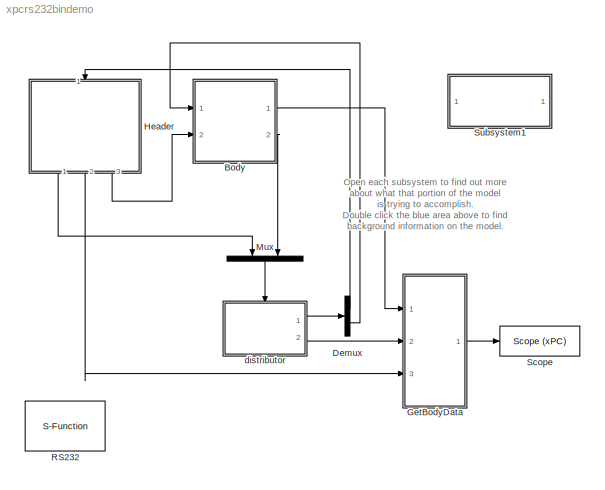
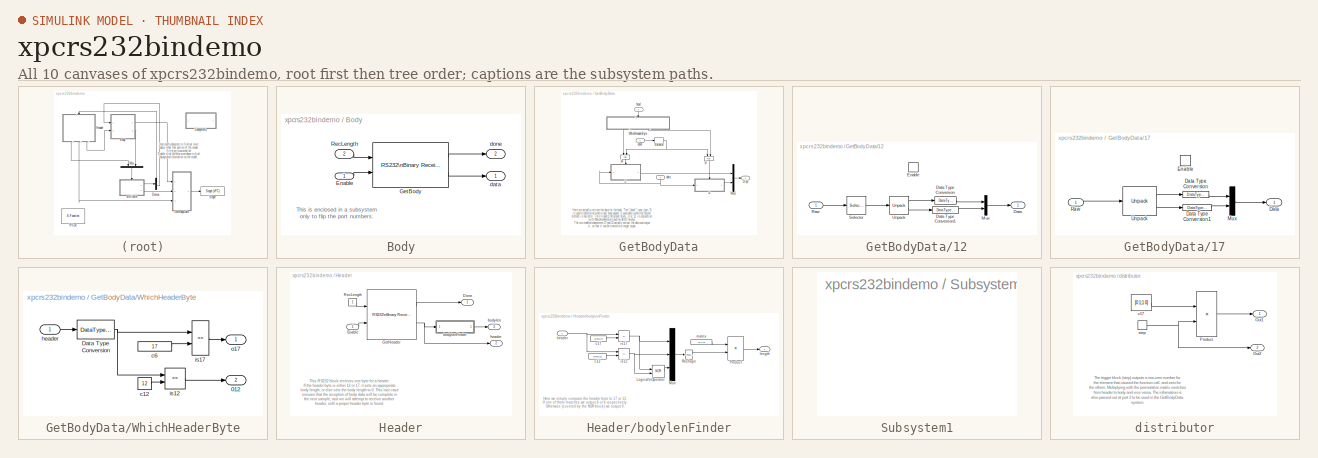
[diagram: thumbnail index - all 10 canvases of the model, root first then tree order]
MODEL xpcrs232bindemo
KIND model
CONFIG AbsTol = auto
CONFIG FixedStep = 0.01
CONFIG MaxStep = auto
CONFIG MinStep = auto
CONFIG RelTol = 1e-3
CONFIG Solver = ode5
CONFIG SolverMode = Auto
CONFIG StartTime = 0.0
CONFIG StopTime = inf
BLOCK [SubSystem] Body
  Ports = [2, 2]
  RTWFcnNameOpts = Auto
  RTWFileNameOpts = Auto
  RTWSystemCode = Auto
  ShowPortLabels = on
  TreatAsAtomicUnit = on
BLOCK [Inport] Body/Enable
  Interpolate = on
  LatchInput = off
  Port = 1
BLOCK [Reference] Body/GetBody  REF=xpclib/RS232/Binary\nMode/RS232\nBinary Receive
  Ports = [2, 2]
  SourceBlock = xpclib/RS232/Binary\nMode/RS232\nBinary Receive
  SourceType = rs232brec
  port = COM1
  samptime = -1
  width = 6
BLOCK [Inport] Body/RecLength
  Interpolate = on
  LatchInput = off
  Port = 2
BLOCK [Outport] Body/data
  InitialOutput = []
  OutputWhenDisabled = held
  Port = 1
BLOCK [Outport] Body/done
  InitialOutput = []
  OutputWhenDisabled = held
  Port = 2
BLOCK [Demux] Demux
  BusSelectionMode = off
  Outputs = 2
  Ports = [1, 2]
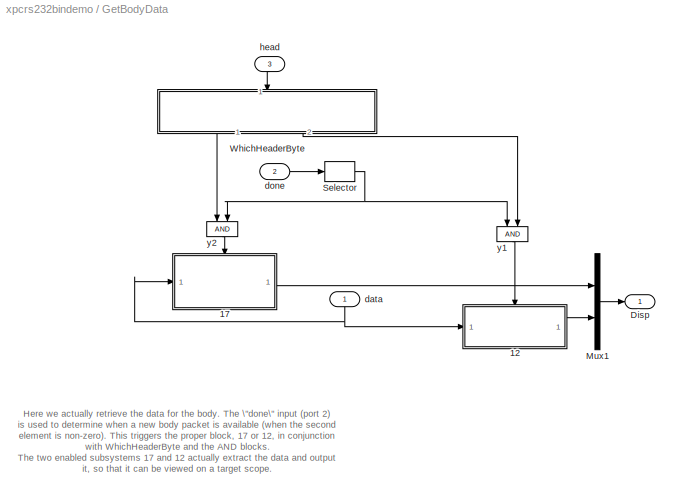
BLOCK [SubSystem] GetBodyData
  Ports = [3, 1]
  RTWFcnNameOpts = Auto
  RTWFileNameOpts = Auto
  RTWSystemCode = Auto
  ShowPortLabels = on
  TreatAsAtomicUnit = off
BLOCK [SubSystem] GetBodyData/12
  Ports = [1, 1, 1]
  RTWFcnNameOpts = Auto
  RTWFileNameOpts = Auto
  RTWSystemCode = Auto
  ShowPortLabels = on
  TreatAsAtomicUnit = on
BLOCK [Outport] GetBodyData/12/Data
  InitialOutput = []
  OutputWhenDisabled = held
  Port = 1
BLOCK [DataTypeConversion] GetBodyData/12/Data Type Conversion
  DataType = double
  SaturateOnIntegerOverflow = on
BLOCK [DataTypeConversion] GetBodyData/12/Data Type Conversion1
  DataType = double
  SaturateOnIntegerOverflow = on
BLOCK [EnablePort] GetBodyData/12/Enable
  Ports = []
  ShowOutputPort = off
  StatesWhenEnabling = held
BLOCK [Mux] GetBodyData/12/Mux
  DisplayOption = bar
  Inputs = 2
  Ports = [2, 1]
BLOCK [Inport] GetBodyData/12/Raw
  Interpolate = on
  LatchInput = off
  Port = 1
BLOCK [Selector] GetBodyData/12/Selector
  ColumnSrc = Internal
  Columns = 1
  ElementSrc = Internal
  Elements = [1:4]
  InputPortWidth = 6
  InputType = Vector
  Ports = [1, 1]
  RowSrc = Internal
  Rows = 1
BLOCK [Reference] GetBodyData/12/Unpack  REF=xpclib/UDP/Unpack
  Ports = [1, 2]
  SourceBlock = xpclib/UDP/Unpack
  SourceType = xpcbyte2any
  byteAlign = 1
  datatypes = {'uint16', 'int16'}
  dimensions = {1,1}
BLOCK [SubSystem] GetBodyData/17
  Ports = [1, 1, 1]
  RTWFcnNameOpts = Auto
  RTWFileNameOpts = Auto
  RTWSystemCode = Auto
  ShowPortLabels = on
  TreatAsAtomicUnit = on
BLOCK [Outport] GetBodyData/17/Data
  InitialOutput = []
  OutputWhenDisabled = held
  Port = 1
BLOCK [DataTypeConversion] GetBodyData/17/Data Type Conversion
  DataType = double
  SaturateOnIntegerOverflow = on
BLOCK [DataTypeConversion] GetBodyData/17/Data Type Conversion1
  DataType = double
  SaturateOnIntegerOverflow = on
BLOCK [EnablePort] GetBodyData/17/Enable
  Ports = []
  ShowOutputPort = off
  StatesWhenEnabling = held
BLOCK [Mux] GetBodyData/17/Mux
  DisplayOption = bar
  Inputs = 2
  Ports = [2, 1]
BLOCK [Inport] GetBodyData/17/Raw
  Interpolate = on
  LatchInput = off
  Port = 1
BLOCK [Reference] GetBodyData/17/Unpack  REF=xpclib/UDP/Unpack
  Ports = [1, 2]
  SourceBlock = xpclib/UDP/Unpack
  SourceType = xpcbyte2any
  byteAlign = 1
  datatypes = {'uint16','int32'}
  dimensions = {1,1}
BLOCK [Outport] GetBodyData/Disp
  InitialOutput = []
  OutputWhenDisabled = held
  Port = 1
BLOCK [Mux] GetBodyData/Mux1
  DisplayOption = bar
  Inputs = 2
  Ports = [2, 1]
BLOCK [Selector] GetBodyData/Selector
  ColumnSrc = Internal
  Columns = 1
  ElementSrc = Internal
  Elements = 2
  InputPortWidth = 2
  InputType = Vector
  Ports = [1, 1]
  RowSrc = Internal
  Rows = 1
BLOCK [SubSystem] GetBodyData/WhichHeaderByte
  Ports = [1, 2]
  RTWFcnNameOpts = Auto
  RTWFileNameOpts = Auto
  RTWSystemCode = Auto
  ShowPortLabels = on
  TreatAsAtomicUnit = off
BLOCK [Outport] GetBodyData/WhichHeaderByte/012
  InitialOutput = []
  OutputWhenDisabled = held
  Port = 2
BLOCK [DataTypeConversion] GetBodyData/WhichHeaderByte/Data Type Conversion
  DataType = double
  SaturateOnIntegerOverflow = on
BLOCK [Constant] GetBodyData/WhichHeaderByte/c12
  Value = 12
  VectorParams1D = on
BLOCK [Constant] GetBodyData/WhichHeaderByte/c6
  Value = 17
  VectorParams1D = on
BLOCK [Inport] GetBodyData/WhichHeaderByte/header
  Interpolate = on
  LatchInput = off
  Port = 1
BLOCK [RelationalOperator] GetBodyData/WhichHeaderByte/is12
  Operator = ==
BLOCK [RelationalOperator] GetBodyData/WhichHeaderByte/is17
  Operator = ==
BLOCK [Outport] GetBodyData/WhichHeaderByte/o17
  InitialOutput = []
  OutputWhenDisabled = held
  Port = 1
BLOCK [Inport] GetBodyData/data
  Interpolate = on
  LatchInput = off
  Port = 1
BLOCK [Inport] GetBodyData/done
  Interpolate = on
  LatchInput = off
  Port = 2
BLOCK [Inport] GetBodyData/head
  Interpolate = on
  LatchInput = off
  Port = 3
BLOCK [Logic] GetBodyData/y1
  Inputs = 2
  Operator = AND
  Ports = [2, 1]
BLOCK [Logic] GetBodyData/y2
  Inputs = 2
  Operator = AND
  Ports = [2, 1]
BLOCK [SubSystem] Header
  Ports = [1, 3]
  RTWFcnNameOpts = Auto
  RTWFileNameOpts = Auto
  RTWSystemCode = Auto
  ShowPortLabels = on
  TreatAsAtomicUnit = on
BLOCK [Outport] Header/Done
  InitialOutput = []
  OutputWhenDisabled = held
  Port = 1
BLOCK [Inport] Header/Enable
  Interpolate = on
  LatchInput = off
  Port = 1
BLOCK [Reference] Header/GetHeader  REF=xpclib/RS232/Binary\nMode/RS232\nBinary Receive
  Ports = [2, 2]
  SourceBlock = xpclib/RS232/Binary\nMode/RS232\nBinary Receive
  SourceType = rs232brec
  port = COM1
  samptime = -1
  width = 1
BLOCK [Constant] Header/RecLength
  Value = 1
  VectorParams1D = on
BLOCK [Outport] Header/bodylen
  InitialOutput = []
  OutputWhenDisabled = held
  Port = 3
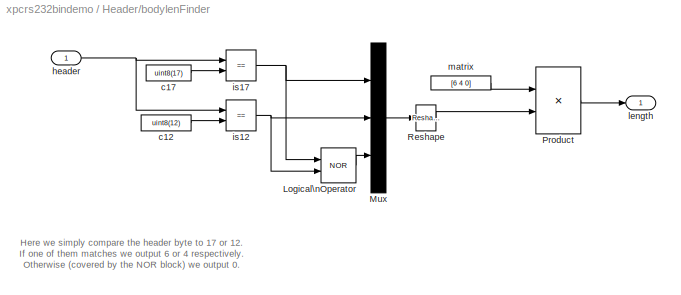
BLOCK [SubSystem] Header/bodylenFinder
  Ports = [1, 1]
  RTWFcnNameOpts = Auto
  RTWFileNameOpts = Auto
  RTWSystemCode = Auto
  ShowPortLabels = on
  TreatAsAtomicUnit = off
BLOCK [Logic] Header/bodylenFinder/Logical\nOperator
  Inputs = 2
  Operator = NOR
  Ports = [2, 1]
BLOCK [Mux] Header/bodylenFinder/Mux
  DisplayOption = bar
  Inputs = 3
  Ports = [3, 1]
BLOCK [Product] Header/bodylenFinder/Product
  Inputs = 2
  Multiplication = Matrix(*)
  Ports = [2, 1]
  SaturateOnIntegerOverflow = on
BLOCK [Reference] Header/bodylenFinder/Reshape  REF=simulink3/Signals\n& Systems/Reshape
  OutputDimensionality = Column vector
  OutputDimensions = [1,1]
  Ports = [1, 1]
  SourceBlock = simulink3/Signals\n& Systems/Reshape
  SourceType = Reshape
BLOCK [Constant] Header/bodylenFinder/c12
  Value = uint8(12)
  VectorParams1D = on
BLOCK [Constant] Header/bodylenFinder/c17
  Value = uint8(17)
  VectorParams1D = on
BLOCK [Inport] Header/bodylenFinder/header
  Interpolate = on
  LatchInput = off
  Port = 1
BLOCK [RelationalOperator] Header/bodylenFinder/is12
  Operator = ==
BLOCK [RelationalOperator] Header/bodylenFinder/is17
  Operator = ==
BLOCK [Outport] Header/bodylenFinder/length
  InitialOutput = []
  OutputWhenDisabled = held
  Port = 1
BLOCK [Constant] Header/bodylenFinder/matrix
  Value = [6 4 0]
  VectorParams1D = off
BLOCK [Outport] Header/header
  InitialOutput = []
  OutputWhenDisabled = held
  Port = 2
BLOCK [Mux] Mux
  DisplayOption = bar
  Inputs = 2
  Ports = [2, 1]
BLOCK [S-Function] RS232 
  AncestorBlock = xpclib/RS232/RS232
  FunctionName = rs232setup
  InitFcn = mrs232(0);
  MaskCallbackString = |||||||||
  MaskDescription = RS-232\nMainboard\nSetup
  MaskDisplay = disp('RS-232\\nMainboard\\nSetup');
  MaskEnableString = on,on,on,on,on,on,on,on,on,on
  MaskHelp = helpview([docroot '/toolbox/xpc/pt_io_block_reference.html#xpcioref'])
  MaskIconFrame = on
  MaskIconOpaque = on
  MaskIconRotate = none
  MaskIconUnits = autoscale
  MaskInitialization = dmy = '';\n[istr,iack,dmy,maskdisplay,maskdescription,dmy,dmy,dmy,dmy,initinfo,initackinfo,iackto]=mrs232(2,initstruct,4);\n[tstr,tack,dmy,maskdisplay,maskdescription,dmy,dmy,dmy,dmy,terminfo,termackinfo,tackto]=mrs232(1,termstruct,4);\nset_param(gcb,'MaskDisplay',maskdisplay);\nset_param(gcb,'MaskDescription',maskdescription);\n\n\n
  MaskPromptString = Port:|Baudrate:|Number of Databits:|Number of Stopbits:|Parity|Protocol:|Send Buffer Size:|Receive Buffer Size:|Initialization Struct:|Termination Struct:
  MaskSelfModifiable = on
  MaskStyleString = popup(COM1|COM2|COM3|COM4),popup(115200|57600|38400|19200|9600|4800|2400|1200|600|300|110),popup(8|7),popup(1|2),popup(None|Odd|Even),popup(None|XOn XOff),edit,edit,edit,edit
  MaskToolTipString = on,on,on,on,on,on,on,on,on,on
  MaskTunableValueString = on,on,on,on,on,on,on,on,on,on
  MaskType = rs232setup
  MaskValueString = COM1|115200|8|1|None|None|1024|1024|[]|[]
  MaskVariableAliases = ,,,,,,,,,
  MaskVariables = port=@1;baud=@2;dbits=@3;sbits=@4;parity=@5;prot=@6;sbuf=@7;rbuf=@8;initstruct=@9;termstruct=@10;
  MaskVisibilityString = on,on,on,on,on,on,on,on,on,on
  Parameters = port, baud, dbits, sbits, parity, prot, sbuf, rbuf, 0, istr, iack, iackto, tstr, tack, tackto, initinfo, initackinfo, terminfo, termackinfo
  PortCounts = []
  Ports = []
  SFunctionModules = ''
BLOCK [Reference] Scope  REF=xpclib/Misc./Scope (xPC) 
  Ports = [1]
  SourceBlock = xpclib/Misc./Scope (xPC)
  SourceType = xpcscopeblock
  autostart = on
  grid = on
  interleave = 1
  noprepostsamples = 0
  nosamples = 3
  scopeno = 1
  scopetype = Target
  triggerlevel = 0.0
  triggermode = FreeRun
  triggerscope = 1
  triggersignal = 1
  triggerslope = either
  viewmode = Numerical
  ylimits = [0,0]
BLOCK [SubSystem] Subsystem1
  MaskDisplay = disp('Double Click\\nfor help')
  MaskIconFrame = off
  MaskIconOpaque = on
  MaskIconRotate = none
  MaskIconUnits = autoscale
  OpenFcn = helpview([docroot '\\mapfiles\\xpc.map'], 'RS232_Binary_Example');
  Ports = []
  RTWFcnNameOpts = Auto
  RTWFileNameOpts = Auto
  RTWSystemCode = Auto
  ShowPortLabels = on
  TreatAsAtomicUnit = off
BLOCK [SubSystem] distributor
  Ports = [0, 2, 0, 1]
  RTWFcnNameOpts = Auto
  RTWFileNameOpts = Auto
  RTWSystemCode = Auto
  ShowPortLabels = on
  TreatAsAtomicUnit = on
BLOCK [Outport] distributor/Out1
  InitialOutput = [1 0]
  OutputWhenDisabled = held
  Port = 1
BLOCK [Outport] distributor/Out2
  InitialOutput = [1 0]
  OutputWhenDisabled = held
  Port = 2
BLOCK [Product] distributor/Product
  Inputs = 2
  Multiplication = Matrix(*)
  Ports = [2, 1]
  SaturateOnIntegerOverflow = on
BLOCK [Constant] distributor/c17
  Value = [0 1;1 0]
  VectorParams1D = on
BLOCK [TriggerPort] distributor/step
  OutputDataType = double
  Ports = [0, 1]
  ShowOutputPort = on
  TriggerType = function-call
ANNOTATION (root): Open each subsystem to find out more \nabout what that portion of the model\nis trying to accomplish.\nDouble click the blue area above to find\nbackground information on the model.
ANNOTATION Body: This is enclosed in a subsystem\nonly to flip the port numbers.
ANNOTATION GetBodyData: Here we actually retrieve the data for the body. The \"done\" input (port 2)\nis used to determine when a new body packet is available (when the second\nelement is non-zero). This triggers the proper block, 17 or 12, in conjunction\nwith WhichHeaderByte and the AND blocks.\nThe two enabled subsystems 17 and 12 actually extract the data and output\nit, so that it can be viewed on a target scope.
ANNOTATION Header: This RS232 block receives one byte for a header.\nIf the header byte is either 12 or 17, it sets an appropriate\nbody length, or else sets the body length to 0. This last case\nensures that the reception of body data will be complete in\nthe next sample, and we will attempt to receive another\nheader, until a proper header byte is found.\nThe length of the body (bodylen) as determined by the\nhead...<+71ch>
ANNOTATION Header/bodylenFinder: Here we simply compare the header byte to 17 or 12.\nIf one of them matches we output 6 or 4 respectively.\nOtherwise (covered by the NOR block) we output 0.
ANNOTATION distributor: The trigger block (step) outputs a non-zero number for\nthe element that caused the function call, and zero for\nthe others. Multiplying with the permutation matrix switches\nfrom header to body and vice versa. The information is\nalso passed out at port 2 to be used in the GetBodyData\nsystem.
LINE Body/Enable:1 -> Body/GetBody:2
LINE Body/GetBody:1 -> Body/done:1
LINE Body/GetBody:2 -> Body/data:1
LINE Body/RecLength:1 -> Body/GetBody:1
LINE Body:1 -> GetBodyData:1
LINE Body:2 -> Mux:2
LINE Demux:1 -> Header:1
LINE Demux:2 -> Body:1
LINE GetBodyData/12/Data Type Conversion1:1 -> GetBodyData/12/Mux:2
LINE GetBodyData/12/Data Type Conversion:1 -> GetBodyData/12/Mux:1
LINE GetBodyData/12/Mux:1 -> GetBodyData/12/Data:1
LINE GetBodyData/12/Raw:1 -> GetBodyData/12/Selector:1
LINE GetBodyData/12/Selector:1 -> GetBodyData/12/Unpack:1
LINE GetBodyData/12/Unpack:1 -> GetBodyData/12/Data Type Conversion:1
LINE GetBodyData/12/Unpack:2 -> GetBodyData/12/Data Type Conversion1:1
LINE GetBodyData/12:1 -> GetBodyData/Mux1:2
LINE GetBodyData/17/Data Type Conversion1:1 -> GetBodyData/17/Mux:2
LINE GetBodyData/17/Data Type Conversion:1 -> GetBodyData/17/Mux:1
LINE GetBodyData/17/Mux:1 -> GetBodyData/17/Data:1
LINE GetBodyData/17/Raw:1 -> GetBodyData/17/Unpack:1
LINE GetBodyData/17/Unpack:1 -> GetBodyData/17/Data Type Conversion:1
LINE GetBodyData/17/Unpack:2 -> GetBodyData/17/Data Type Conversion1:1
LINE GetBodyData/17:1 -> GetBodyData/Mux1:1
LINE GetBodyData/Mux1:1 -> GetBodyData/Disp:1
NET GetBodyData/Selector:1 -> GetBodyData/y1:1, GetBodyData/y2:2
NET GetBodyData/WhichHeaderByte/Data Type Conversion:1 -> GetBodyData/WhichHeaderByte/is12:1, GetBodyData/WhichHeaderByte/is17:1
LINE GetBodyData/WhichHeaderByte/c12:1 -> GetBodyData/WhichHeaderByte/is12:2
LINE GetBodyData/WhichHeaderByte/c6:1 -> GetBodyData/WhichHeaderByte/is17:2
LINE GetBodyData/WhichHeaderByte/header:1 -> GetBodyData/WhichHeaderByte/Data Type Conversion:1
LINE GetBodyData/WhichHeaderByte/is12:1 -> GetBodyData/WhichHeaderByte/012:1
LINE GetBodyData/WhichHeaderByte/is17:1 -> GetBodyData/WhichHeaderByte/o17:1
LINE GetBodyData/WhichHeaderByte:1 -> GetBodyData/y2:1
LINE GetBodyData/WhichHeaderByte:2 -> GetBodyData/y1:2
NET GetBodyData/data:1 -> GetBodyData/12:1, GetBodyData/17:1
LINE GetBodyData/done:1 -> GetBodyData/Selector:1
LINE GetBodyData/head:1 -> GetBodyData/WhichHeaderByte:1
LINE GetBodyData/y1:1 -> GetBodyData/12:enable
LINE GetBodyData/y2:1 -> GetBodyData/17:enable
LINE GetBodyData:1 -> Scope:1
LINE Header/Enable:1 -> Header/GetHeader:2
LINE Header/GetHeader:1 -> Header/Done:1
NET Header/GetHeader:2 -> Header/bodylenFinder:1, Header/header:1
LINE Header/RecLength:1 -> Header/GetHeader:1
LINE Header/bodylenFinder/Logical\nOperator:1 -> Header/bodylenFinder/Mux:3
LINE Header/bodylenFinder/Mux:1 -> Header/bodylenFinder/Reshape:1
LINE Header/bodylenFinder/Product:1 -> Header/bodylenFinder/length:1
LINE Header/bodylenFinder/Reshape:1 -> Header/bodylenFinder/Product:2
LINE Header/bodylenFinder/c12:1 -> Header/bodylenFinder/is12:2
LINE Header/bodylenFinder/c17:1 -> Header/bodylenFinder/is17:2
NET Header/bodylenFinder/header:1 -> Header/bodylenFinder/is12:1, Header/bodylenFinder/is17:1
NET Header/bodylenFinder/is12:1 -> Header/bodylenFinder/Logical\nOperator:2, Header/bodylenFinder/Mux:2
NET Header/bodylenFinder/is17:1 -> Header/bodylenFinder/Logical\nOperator:1, Header/bodylenFinder/Mux:1
LINE Header/bodylenFinder/matrix:1 -> Header/bodylenFinder/Product:1
LINE Header/bodylenFinder:1 -> Header/bodylen:1
LINE Header:1 -> Mux:1
LINE Header:2 -> GetBodyData:3
LINE Header:3 -> Body:2
LINE Mux:1 -> distributor:trigger
LINE distributor/Product:1 -> distributor/Out1:1
LINE distributor/c17:1 -> distributor/Product:1
NET distributor/step:1 -> distributor/Out2:1, distributor/Product:2
LINE distributor:1 -> Demux:1
LINE distributor:2 -> GetBodyData:2
note: NET lines group one-source signal fan-out (src -> all destinations, sorted); 1:1 wires keep LINE
